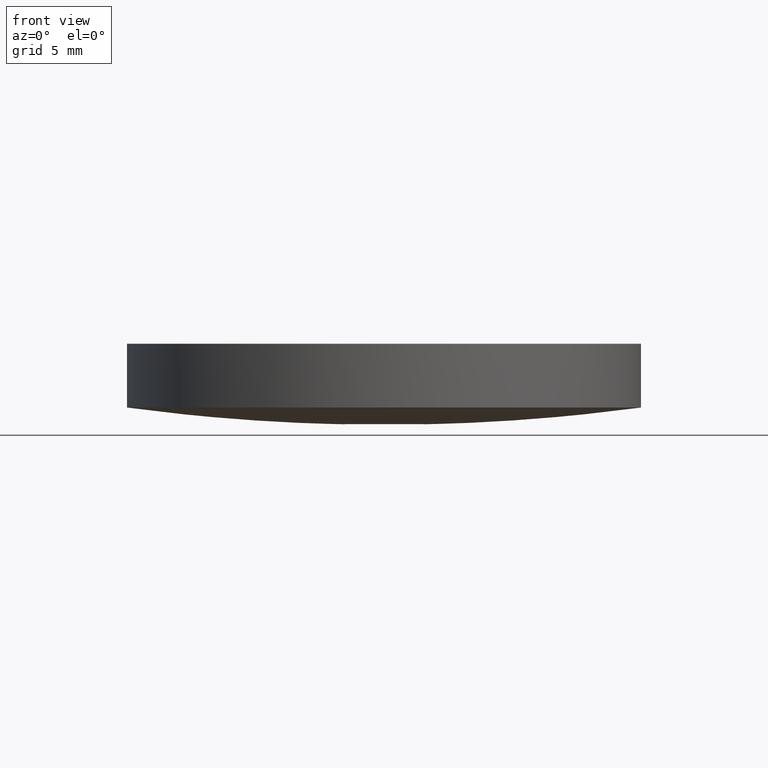
[diagram: clean part render]
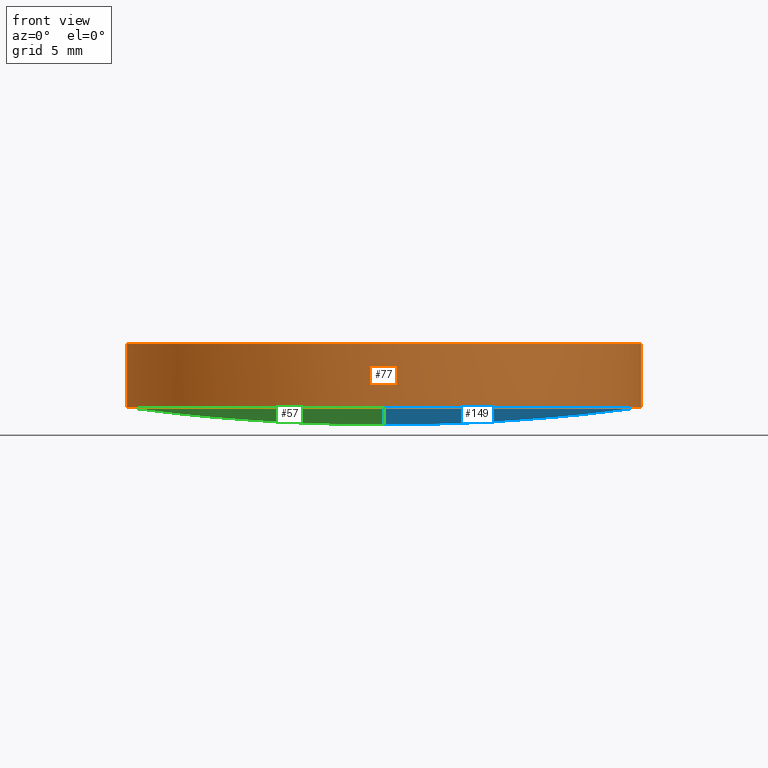
[diagram: same view with three faces highlighted in distinct colors, each labeled with its STEP entity id]
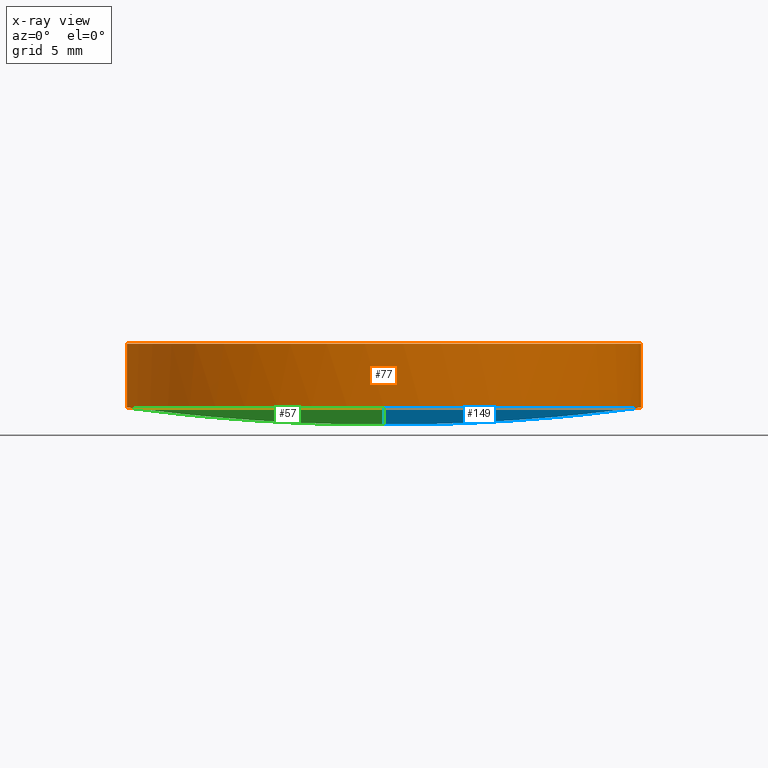
[diagram: x-ray of the same camera — body ghosted, the three highlighted faces saturated]
A machine part, front view with three faces highlighted in distinct colors.
The next image is the same camera in x-ray (body ghosted, the three faces saturated) — at least one of them is partly hidden behind the body in this view.
Their STEP definitions:

[orange] entity #77 — the highlighted cylindrical surface (partial cylindrical patch) has radius 12.7 mm, axis along (0, 0, 1).
#2 = DIRECTION ( 'NONE',  ( 0.0000000000000000000, 0.0000000000000000000, 1.000000000000000000 ) ) ;
#6 = LINE ( 'NONE', #81, #196 ) ;
#10 = AXIS2_PLACEMENT_3D ( 'NONE', #104, #140, #204 ) ;
#17 = EDGE_LOOP ( 'NONE', ( #76, #148, #229, #192, #44 ) ) ;
#33 = CIRCLE ( 'NONE', #214, 12.69999999999999900 ) ;
#38 = CYLINDRICAL_SURFACE ( 'NONE', #10, 12.69999999999999900 ) ;
#44 = ORIENTED_EDGE ( 'NONE', *, *, #161, .T. ) ;
#56 = CIRCLE ( 'NONE', #99, 12.69999999999999900 ) ;
#62 = VERTEX_POINT ( 'NONE', #95 ) ;
#64 = DIRECTION ( 'NONE',  ( -0.0000000000000000000, -0.0000000000000000000, -1.000000000000000000 ) ) ;
#68 = CARTESIAN_POINT ( 'NONE',  ( 4.996003610813200500E-016, 2.442490654175340100E-015, 4.000000000000000000 ) ) ;
#76 = ORIENTED_EDGE ( 'NONE', *, *, #113, .F. ) ;
#77 = ADVANCED_FACE ( 'NONE', ( #178 ), #38, .T. ) ;
#81 = CARTESIAN_POINT ( 'NONE',  ( -12.69999999999999900, 3.997792089092478900E-015, 0.8508239756196249700 ) ) ;
#85 = CARTESIAN_POINT ( 'NONE',  ( -12.69999999999999900, 3.997792089092478900E-015, 4.000000000000000000 ) ) ;
#86 = CIRCLE ( 'NONE', #132, 12.69999999999999900 ) ;
#87 = CARTESIAN_POINT ( 'NONE',  ( 4.996003610813200500E-016, 2.442490654175340100E-015, 0.8508239756196249700 ) ) ;
#89 = VERTEX_POINT ( 'NONE', #102 ) ;
#95 = CARTESIAN_POINT ( 'NONE',  ( 12.69999999999999900, 2.442490654175340100E-015, 4.000000000000000000 ) ) ;
#99 = AXIS2_PLACEMENT_3D ( 'NONE', #87, #64, #138 ) ;
#100 = DIRECTION ( 'NONE',  ( -0.0000000000000000000, -0.0000000000000000000, -1.000000000000000000 ) ) ;
#102 = CARTESIAN_POINT ( 'NONE',  ( 12.69999999999999900, 2.442490654175340100E-015, 0.8508239756196249700 ) ) ;
#104 = CARTESIAN_POINT ( 'NONE',  ( 4.996003610813200500E-016, 2.442490654175340100E-015, 0.8508239756196249700 ) ) ;
#108 = VERTEX_POINT ( 'NONE', #119 ) ;
#113 = EDGE_CURVE ( 'NONE', #108, #232, #6, .T. ) ;
#119 = CARTESIAN_POINT ( 'NONE',  ( -12.69999999999999900, 3.997792089092478900E-015, 0.8508239756196249700 ) ) ;
#132 = AXIS2_PLACEMENT_3D ( 'NONE', #187, #189, #205 ) ;
#137 = EDGE_CURVE ( 'NONE', #89, #62, #217, .T. ) ;
#138 = DIRECTION ( 'NONE',  ( 1.000000000000000000, 0.0000000000000000000, 0.0000000000000000000 ) ) ;
#140 = DIRECTION ( 'NONE',  ( 0.0000000000000000000, 0.0000000000000000000, 1.000000000000000000 ) ) ;
#146 = EDGE_CURVE ( 'NONE', #150, #108, #56, .T. ) ;
#148 = ORIENTED_EDGE ( 'NONE', *, *, #146, .F. ) ;
#150 = VERTEX_POINT ( 'NONE', #171 ) ;
#151 = VECTOR ( 'NONE', #190, 1000.000000000000000 ) ;
#155 = DIRECTION ( 'NONE',  ( 1.000000000000000000, 0.0000000000000000000, 0.0000000000000000000 ) ) ;
#161 = EDGE_CURVE ( 'NONE', #62, #232, #33, .T. ) ;
#169 = EDGE_CURVE ( 'NONE', #89, #150, #86, .T. ) ;
#171 = CARTESIAN_POINT ( 'NONE',  ( 3.621158817093093200E-014, -12.69999999999998900, 0.8508239756196261900 ) ) ;
#172 = CARTESIAN_POINT ( 'NONE',  ( 12.69999999999999900, 2.442490654175340100E-015, 0.8508239756196249700 ) ) ;
#178 = FACE_OUTER_BOUND ( 'NONE', #17, .T. ) ;
#187 = CARTESIAN_POINT ( 'NONE',  ( 4.996003610813200500E-016, 2.442490654175340100E-015, 0.8508239756196249700 ) ) ;
#189 = DIRECTION ( 'NONE',  ( -0.0000000000000000000, -0.0000000000000000000, -1.000000000000000000 ) ) ;
#190 = DIRECTION ( 'NONE',  ( 0.0000000000000000000, 0.0000000000000000000, 1.000000000000000000 ) ) ;
#192 = ORIENTED_EDGE ( 'NONE', *, *, #137, .T. ) ;
#196 = VECTOR ( 'NONE', #2, 1000.000000000000000 ) ;
#204 = DIRECTION ( 'NONE',  ( 1.000000000000000000, 0.0000000000000000000, 0.0000000000000000000 ) ) ;
#205 = DIRECTION ( 'NONE',  ( 1.000000000000000000, 0.0000000000000000000, 0.0000000000000000000 ) ) ;
#214 = AXIS2_PLACEMENT_3D ( 'NONE', #68, #100, #155 ) ;
#217 = LINE ( 'NONE', #172, #151 ) ;
#229 = ORIENTED_EDGE ( 'NONE', *, *, #169, .F. ) ;
#232 = VERTEX_POINT ( 'NONE', #85 ) ;

[blue] entity #149 — the highlighted face is a freeform B-spline surface patch.
#3 = AXIS2_PLACEMENT_3D ( 'NONE', #22, #218, #43 ) ;
#7 = CARTESIAN_POINT ( 'NONE',  ( 4.287812090952600700, 4.310121068828110900, -0.2922278843999989200 ) ) ;
#8 = EDGE_CURVE ( 'NONE', #181, #89, #136, .T. ) ;
#20 = ORIENTED_EDGE ( 'NONE', *, *, #231, .T. ) ;
#22 = CARTESIAN_POINT ( 'NONE',  ( 4.996003610813200500E-016, 2.442490654175340100E-015, 0.8508239756196249700 ) ) ;
#24 = CARTESIAN_POINT ( 'NONE',  ( 8.461554903374523200, -12.85147319862264400, 1.156154320394219100 ) ) ;
#26 = CARTESIAN_POINT ( 'NONE',  ( 12.65882076481594800, 12.85147319862263000, 1.724503833646207300 ) ) ;
#43 = DIRECTION ( 'NONE',  ( 1.000000000000000000, 0.0000000000000000000, 0.0000000000000000000 ) ) ;
#47 = CARTESIAN_POINT ( 'NONE',  ( 12.81495327383873200, -4.310121068828122400, 0.5714639616968760800 ) ) ;
#66 = CARTESIAN_POINT ( 'NONE',  ( 8.565918794912500200, -4.310121068828121500, -0.003895512210574697700 ) ) ;
#86 = CIRCLE ( 'NONE', #132, 12.69999999999999900 ) ;
#89 = VERTEX_POINT ( 'NONE', #102 ) ;
#102 = CARTESIAN_POINT ( 'NONE',  ( 12.69999999999999900, 2.442490654175340100E-015, 0.8508239756196249700 ) ) ;
#103 = CIRCLE ( 'NONE', #179, 95.20999999999999400 ) ;
#106 = CARTESIAN_POINT ( 'NONE',  ( 4.235571021814615200, 12.85147319862263200, 0.8713348799916240700 ) ) ;
#115 = ORIENTED_EDGE ( 'NONE', *, *, #169, .T. ) ;
#121 = CARTESIAN_POINT ( 'NONE',  ( 3.656417551492290700E-014, -4.310121068828122400, -0.2922278844000026400 ) ) ;
#122 = CARTESIAN_POINT ( 'NONE',  ( 8.461554903374523200, 12.85147319862263200, 1.156154320394219100 ) ) ;
#125 = DIRECTION ( 'NONE',  ( 0.0000000000000000000, -1.000000000000000000, 2.915195422290611700E-016 ) ) ;
#132 = AXIS2_PLACEMENT_3D ( 'NONE', #187, #189, #205 ) ;
#136 = CIRCLE ( 'NONE', #3, 12.69999999999999900 ) ;
#139 = CARTESIAN_POINT ( 'NONE',  ( 3.656417551492290700E-014, 4.310121068828110000, -0.2922278844000001900 ) ) ;
#149 = ADVANCED_FACE ( 'NONE', ( #173 ), #230, .T. ) ;
#150 = VERTEX_POINT ( 'NONE', #171 ) ;
#157 = CARTESIAN_POINT ( 'NONE',  ( 4.235571021814615200, -12.85147319862264400, 0.8713348799916240700 ) ) ;
#158 = CARTESIAN_POINT ( 'NONE',  ( 3.621158817093093200E-014, 12.69999999999999600, 0.8508239756196261900 ) ) ;
#160 = ORIENTED_EDGE ( 'NONE', *, *, #8, .T. ) ;
#169 = EDGE_CURVE ( 'NONE', #89, #150, #86, .T. ) ;
#170 = CARTESIAN_POINT ( 'NONE',  ( 3.620526134924563500E-014, -12.85147319862264000, 0.8713348799916226200 ) ) ;
#171 = CARTESIAN_POINT ( 'NONE',  ( 3.621158817093093200E-014, -12.69999999999998900, 0.8508239756196261900 ) ) ;
#173 = FACE_OUTER_BOUND ( 'NONE', #235, .T. ) ;
#179 = AXIS2_PLACEMENT_3D ( 'NONE', #228, #224, #125 ) ;
#181 = VERTEX_POINT ( 'NONE', #158 ) ;
#185 = CARTESIAN_POINT ( 'NONE',  ( 12.81495327383873000, 4.310121068828110000, 0.5714639616968784100 ) ) ;
#186 = CARTESIAN_POINT ( 'NONE',  ( 3.620526134924563500E-014, 12.85147319862263000, 0.8713348799916226200 ) ) ;
#187 = CARTESIAN_POINT ( 'NONE',  ( 4.996003610813200500E-016, 2.442490654175340100E-015, 0.8508239756196249700 ) ) ;
#189 = DIRECTION ( 'NONE',  ( -0.0000000000000000000, -0.0000000000000000000, -1.000000000000000000 ) ) ;
#205 = DIRECTION ( 'NONE',  ( 1.000000000000000000, 0.0000000000000000000, 0.0000000000000000000 ) ) ;
#206 = CARTESIAN_POINT ( 'NONE',  ( 4.287812090952600700, -4.310121068828121500, -0.2922278844000013600 ) ) ;
#218 = DIRECTION ( 'NONE',  ( -0.0000000000000000000, -0.0000000000000000000, -1.000000000000000000 ) ) ;
#220 = CARTESIAN_POINT ( 'NONE',  ( 12.65882076481594800, -12.85147319862264000, 1.724503833646207300 ) ) ;
#221 = CARTESIAN_POINT ( 'NONE',  ( 8.565918794912500200, 4.310121068828110900, -0.003895512210572312000 ) ) ;
#224 = DIRECTION ( 'NONE',  ( 1.000000000000000000, 9.414397848674539600E-032, 3.084613711104210100E-016 ) ) ;
#228 = CARTESIAN_POINT ( 'NONE',  ( 7.105427357601000300E-015, 7.105427357601000300E-015, 95.20999999999999400 ) ) ;
#230 =( BOUNDED_SURFACE ( )  B_SPLINE_SURFACE ( 3, 3, ( 
 ( #170, #157, #24, #220 ),
 ( #121, #206, #66, #47 ),
 ( #139, #7, #221, #185 ),
 ( #186, #106, #122, #26 ) ),
 .UNSPECIFIED., .F., .F., .F. ) 
 B_SPLINE_SURFACE_WITH_KNOTS ( ( 4, 4 ),
 ( 4, 4 ),
 ( 0.0000000000000000000, 1.000000000000000000 ),
 ( 0.0000000000000000000, 1.000000000000000000 ),
 .UNSPECIFIED. ) 
 GEOMETRIC_REPRESENTATION_ITEM ( )  RATIONAL_B_SPLINE_SURFACE ( (
 ( 1.000000000000000000, 0.9984910117659392400, 0.9984910117659392400, 1.000000000000000000),
 ( 0.9938988560025793200, 0.9923990743230249900, 0.9923990743230249900, 0.9938988560025793200),
 ( 0.9938988560025793200, 0.9923990743230249900, 0.9923990743230249900, 0.9938988560025793200),
 ( 1.000000000000000000, 0.9984910117659392400, 0.9984910117659392400, 1.000000000000000000) ) ) 
 REPRESENTATION_ITEM ( '' )  SURFACE ( )  );
#231 = EDGE_CURVE ( 'NONE', #150, #181, #103, .T. ) ;
#235 = EDGE_LOOP ( 'NONE', ( #115, #20, #160 ) ) ;

[green] entity #57 — the highlighted face is a freeform B-spline surface patch.
#1 = CARTESIAN_POINT ( 'NONE',  ( -12.65882076481595500, 12.85147319862263000, 1.724503833646209700 ) ) ;
#5 = DIRECTION ( 'NONE',  ( -0.0000000000000000000, -0.0000000000000000000, -1.000000000000000000 ) ) ;
#42 = CARTESIAN_POINT ( 'NONE',  ( 1.387778780781445700E-014, 12.85147319862263000, 0.8713348799916284000 ) ) ;
#45 = CARTESIAN_POINT ( 'NONE',  ( -12.81495327383873900, 4.310121068828110000, 0.5714639616968809600 ) ) ;
#52 = ORIENTED_EDGE ( 'NONE', *, *, #110, .T. ) ;
#56 = CIRCLE ( 'NONE', #99, 12.69999999999999900 ) ;
#57 = ADVANCED_FACE ( 'NONE', ( #223 ), #131, .T. ) ;
#58 = EDGE_LOOP ( 'NONE', ( #112, #91, #52 ) ) ;
#61 = CARTESIAN_POINT ( 'NONE',  ( 1.387778780781445700E-014, -4.310121068828123300, -0.2922278843999969700 ) ) ;
#63 = AXIS2_PLACEMENT_3D ( 'NONE', #84, #5, #101 ) ;
#64 = DIRECTION ( 'NONE',  ( -0.0000000000000000000, -0.0000000000000000000, -1.000000000000000000 ) ) ;
#84 = CARTESIAN_POINT ( 'NONE',  ( 4.996003610813200500E-016, 2.442490654175340100E-015, 0.8508239756196249700 ) ) ;
#87 = CARTESIAN_POINT ( 'NONE',  ( 4.996003610813200500E-016, 2.442490654175340100E-015, 0.8508239756196249700 ) ) ;
#91 = ORIENTED_EDGE ( 'NONE', *, *, #146, .T. ) ;
#97 = CARTESIAN_POINT ( 'NONE',  ( -8.461554903374510800, 12.85147319862263200, 1.156154320394218200 ) ) ;
#98 = CARTESIAN_POINT ( 'NONE',  ( -8.461554903374510800, -12.85147319862264400, 1.156154320394218200 ) ) ;
#99 = AXIS2_PLACEMENT_3D ( 'NONE', #87, #64, #138 ) ;
#101 = DIRECTION ( 'NONE',  ( 1.000000000000000000, 0.0000000000000000000, 0.0000000000000000000 ) ) ;
#103 = CIRCLE ( 'NONE', #179, 95.20999999999999400 ) ;
#108 = VERTEX_POINT ( 'NONE', #119 ) ;
#110 = EDGE_CURVE ( 'NONE', #108, #181, #130, .T. ) ;
#112 = ORIENTED_EDGE ( 'NONE', *, *, #231, .F. ) ;
#116 = CARTESIAN_POINT ( 'NONE',  ( -4.235571021814584100, 12.85147319862263200, 0.8713348799916281800 ) ) ;
#117 = CARTESIAN_POINT ( 'NONE',  ( -4.287812090952568800, 4.310121068828110000, -0.2922278843999948600 ) ) ;
#119 = CARTESIAN_POINT ( 'NONE',  ( -12.69999999999999900, 3.997792089092478900E-015, 0.8508239756196249700 ) ) ;
#125 = DIRECTION ( 'NONE',  ( 0.0000000000000000000, -1.000000000000000000, 2.915195422290611700E-016 ) ) ;
#130 = CIRCLE ( 'NONE', #63, 12.69999999999999900 ) ;
#131 =( BOUNDED_SURFACE ( )  B_SPLINE_SURFACE ( 3, 3, ( 
 ( #168, #98, #215, #233 ),
 ( #135, #167, #234, #61 ),
 ( #45, #152, #117, #183 ),
 ( #1, #97, #116, #42 ) ),
 .UNSPECIFIED., .F., .F., .F. ) 
 B_SPLINE_SURFACE_WITH_KNOTS ( ( 4, 4 ),
 ( 4, 4 ),
 ( 0.0000000000000000000, 1.000000000000000000 ),
 ( 0.0000000000000000000, 1.000000000000000000 ),
 .UNSPECIFIED. ) 
 GEOMETRIC_REPRESENTATION_ITEM ( )  RATIONAL_B_SPLINE_SURFACE ( (
 ( 1.000000000000000000, 0.9984910117659392400, 0.9984910117659392400, 1.000000000000000000),
 ( 0.9938988560025793200, 0.9923990743230249900, 0.9923990743230249900, 0.9938988560025793200),
 ( 0.9938988560025793200, 0.9923990743230249900, 0.9923990743230249900, 0.9938988560025793200),
 ( 1.000000000000000000, 0.9984910117659392400, 0.9984910117659392400, 1.000000000000000000) ) ) 
 REPRESENTATION_ITEM ( '' )  SURFACE ( )  );
#135 = CARTESIAN_POINT ( 'NONE',  ( -12.81495327383873900, -4.310121068828122400, 0.5714639616968787400 ) ) ;
#138 = DIRECTION ( 'NONE',  ( 1.000000000000000000, 0.0000000000000000000, 0.0000000000000000000 ) ) ;
#146 = EDGE_CURVE ( 'NONE', #150, #108, #56, .T. ) ;
#150 = VERTEX_POINT ( 'NONE', #171 ) ;
#152 = CARTESIAN_POINT ( 'NONE',  ( -8.565918794912489500, 4.310121068828110900, -0.003895512210573180300 ) ) ;
#158 = CARTESIAN_POINT ( 'NONE',  ( 3.621158817093093200E-014, 12.69999999999999600, 0.8508239756196261900 ) ) ;
#167 = CARTESIAN_POINT ( 'NONE',  ( -8.565918794912489500, -4.310121068828121500, -0.003895512210575673100 ) ) ;
#168 = CARTESIAN_POINT ( 'NONE',  ( -12.65882076481595500, -12.85147319862264000, 1.724503833646209700 ) ) ;
#171 = CARTESIAN_POINT ( 'NONE',  ( 3.621158817093093200E-014, -12.69999999999998900, 0.8508239756196261900 ) ) ;
#179 = AXIS2_PLACEMENT_3D ( 'NONE', #228, #224, #125 ) ;
#181 = VERTEX_POINT ( 'NONE', #158 ) ;
#183 = CARTESIAN_POINT ( 'NONE',  ( 1.387778780781445700E-014, 4.310121068828109100, -0.2922278843999945300 ) ) ;
#215 = CARTESIAN_POINT ( 'NONE',  ( -4.235571021814584100, -12.85147319862264400, 0.8713348799916281800 ) ) ;
#223 = FACE_OUTER_BOUND ( 'NONE', #58, .T. ) ;
#224 = DIRECTION ( 'NONE',  ( 1.000000000000000000, 9.414397848674539600E-032, 3.084613711104210100E-016 ) ) ;
#228 = CARTESIAN_POINT ( 'NONE',  ( 7.105427357601000300E-015, 7.105427357601000300E-015, 95.20999999999999400 ) ) ;
#231 = EDGE_CURVE ( 'NONE', #150, #181, #103, .T. ) ;
#233 = CARTESIAN_POINT ( 'NONE',  ( 1.387778780781445700E-014, -12.85147319862264000, 0.8713348799916284000 ) ) ;
#234 = CARTESIAN_POINT ( 'NONE',  ( -4.287812090952569700, -4.310121068828122400, -0.2922278843999973600 ) ) ;